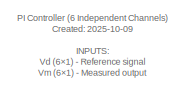
[diagram: root canvas - part 1/4, top left region]
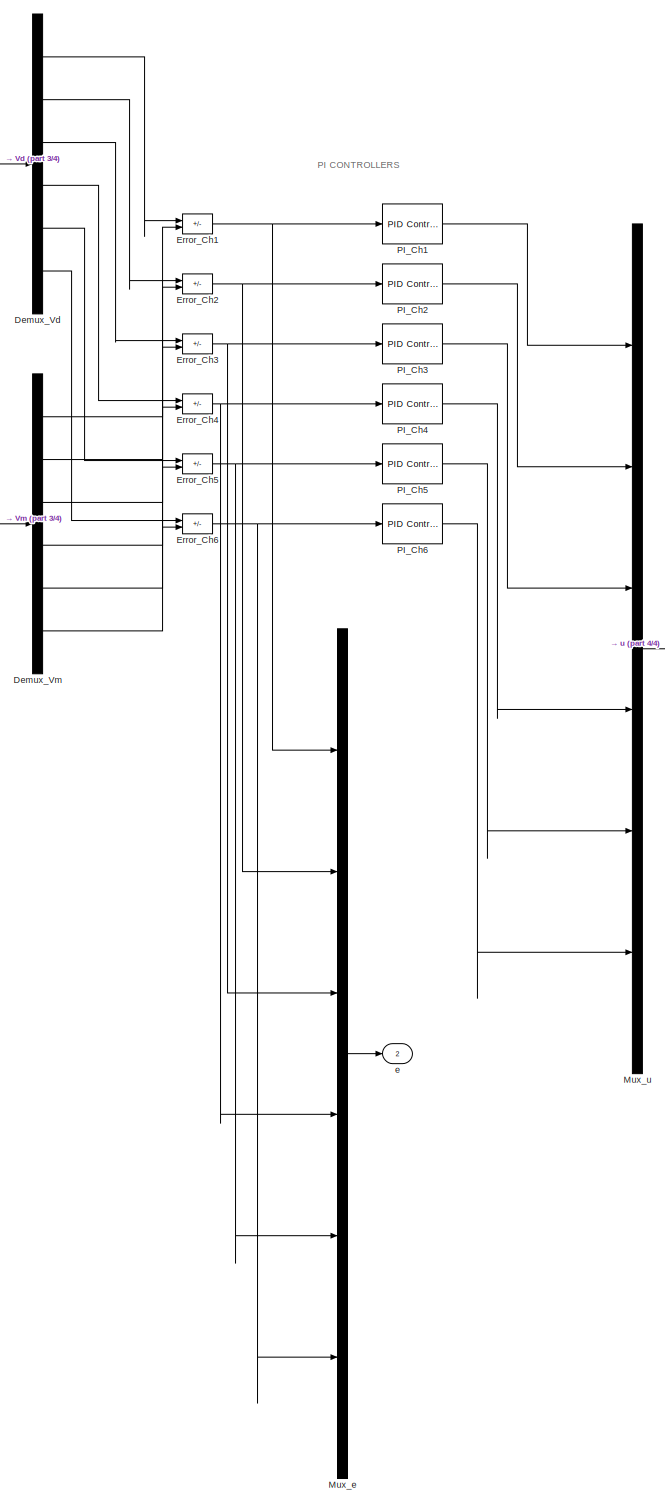
[diagram: root canvas - part 2/4, center side, full height]
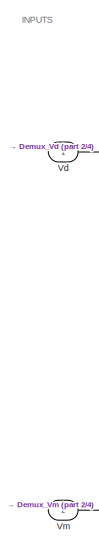
[diagram: root canvas - part 3/4, top center region]
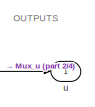
[diagram: root canvas - part 4/4, middle right region]
MODEL slx_51c101b661a0
KIND model
CONFIG AbsTol = auto
CONFIG EnableMultiTasking = off
CONFIG FixedStep = auto
CONFIG MaxStep = auto
CONFIG MinStep = auto
CONFIG RelTol = 1e-3
CONFIG SampleTimeConstraint = Unconstrained
CONFIG SolverName = VariableStepAuto
CONFIG StartTime = 0.0
CONFIG StopTime = 10.0
BLOCK [Demux] Demux_Vd
  Outputs = 6
BLOCK [Demux] Demux_Vm
  Outputs = 6
BLOCK [Sum] Error_Ch1
  IconShape = rectangular
  Inputs = +-
BLOCK [Sum] Error_Ch2
  IconShape = rectangular
  Inputs = +-
BLOCK [Sum] Error_Ch3
  IconShape = rectangular
  Inputs = +-
BLOCK [Sum] Error_Ch4
  IconShape = rectangular
  Inputs = +-
BLOCK [Sum] Error_Ch5
  IconShape = rectangular
  Inputs = +-
BLOCK [Sum] Error_Ch6
  IconShape = rectangular
  Inputs = +-
BLOCK [Mux] Mux_e
  DisplayOption = bar
  Inputs = 6
BLOCK [Mux] Mux_u
  DisplayOption = bar
  Inputs = 6
BLOCK [Reference] PI_Ch1  REF=slpidlib/PID Controller
  LibrarySourceBlock = simulink/Discrete/Discrete PID Controller
  SourceBlock = slpidlib/PID Controller
  SourceType = PID 1dof
BLOCK [Reference] PI_Ch2  REF=slpidlib/PID Controller
  LibrarySourceBlock = simulink/Discrete/Discrete PID Controller
  SourceBlock = slpidlib/PID Controller
  SourceType = PID 1dof
BLOCK [Reference] PI_Ch3  REF=slpidlib/PID Controller
  LibrarySourceBlock = simulink/Discrete/Discrete PID Controller
  SourceBlock = slpidlib/PID Controller
  SourceType = PID 1dof
BLOCK [Reference] PI_Ch4  REF=slpidlib/PID Controller
  LibrarySourceBlock = simulink/Discrete/Discrete PID Controller
  SourceBlock = slpidlib/PID Controller
  SourceType = PID 1dof
BLOCK [Reference] PI_Ch5  REF=slpidlib/PID Controller
  LibrarySourceBlock = simulink/Discrete/Discrete PID Controller
  SourceBlock = slpidlib/PID Controller
  SourceType = PID 1dof
BLOCK [Reference] PI_Ch6  REF=slpidlib/PID Controller
  LibrarySourceBlock = simulink/Discrete/Discrete PID Controller
  SourceBlock = slpidlib/PID Controller
  SourceType = PID 1dof
BLOCK [Inport] Vd
BLOCK [Inport] Vm
  Port = 2
BLOCK [Outport] e
  Port = 2
BLOCK [Outport] u
ANNOTATION (root): INPUTS
ANNOTATION (root): OUTPUTS
ANNOTATION (root): PI CONTROLLERS
ANNOTATION (root): PI Controller (6 Independent Channels) Created: 2025-10-09 INPUTS: Vd (6×1) - Reference signal Vm (6×1) - Measured output OUTPUTS: u (6×1) - Control signal e (6×1) - Error signal (monitoring) CONTROL LAW (each channel): e[k] = Vd[k] - Vm[k] u[k] = Kp*e[k] + Ki*Ts*Σe[i] PARAMETERS (from workspace): Kp - Proportional gain (6×6 diagonal) Ki - Integral gain (6×6 diagonal) Ts_controller - Sample time (...<+13ch>
LINE Demux_Vd:1 -> Error_Ch1:1
LINE Demux_Vd:2 -> Error_Ch2:1
LINE Demux_Vd:3 -> Error_Ch3:1
LINE Demux_Vd:4 -> Error_Ch4:1
LINE Demux_Vd:5 -> Error_Ch5:1
LINE Demux_Vd:6 -> Error_Ch6:1
LINE Demux_Vm:1 -> Error_Ch1:2
LINE Demux_Vm:2 -> Error_Ch2:2
LINE Demux_Vm:3 -> Error_Ch3:2
LINE Demux_Vm:4 -> Error_Ch4:2
LINE Demux_Vm:5 -> Error_Ch5:2
LINE Demux_Vm:6 -> Error_Ch6:2
NET Error_Ch1:1 -> Mux_e:1, PI_Ch1:1
NET Error_Ch2:1 -> Mux_e:2, PI_Ch2:1
NET Error_Ch3:1 -> Mux_e:3, PI_Ch3:1
NET Error_Ch4:1 -> Mux_e:4, PI_Ch4:1
NET Error_Ch5:1 -> Mux_e:5, PI_Ch5:1
NET Error_Ch6:1 -> Mux_e:6, PI_Ch6:1
LINE Mux_e:1 -> e:1
LINE Mux_u:1 -> u:1
LINE PI_Ch1:1 -> Mux_u:1
LINE PI_Ch2:1 -> Mux_u:2
LINE PI_Ch3:1 -> Mux_u:3
LINE PI_Ch4:1 -> Mux_u:4
LINE PI_Ch5:1 -> Mux_u:5
LINE PI_Ch6:1 -> Mux_u:6
LINE Vd:1 -> Demux_Vd:1
LINE Vm:1 -> Demux_Vm:1
note: NET lines group one-source signal fan-out (src -> all destinations, sorted); 1:1 wires keep LINE
